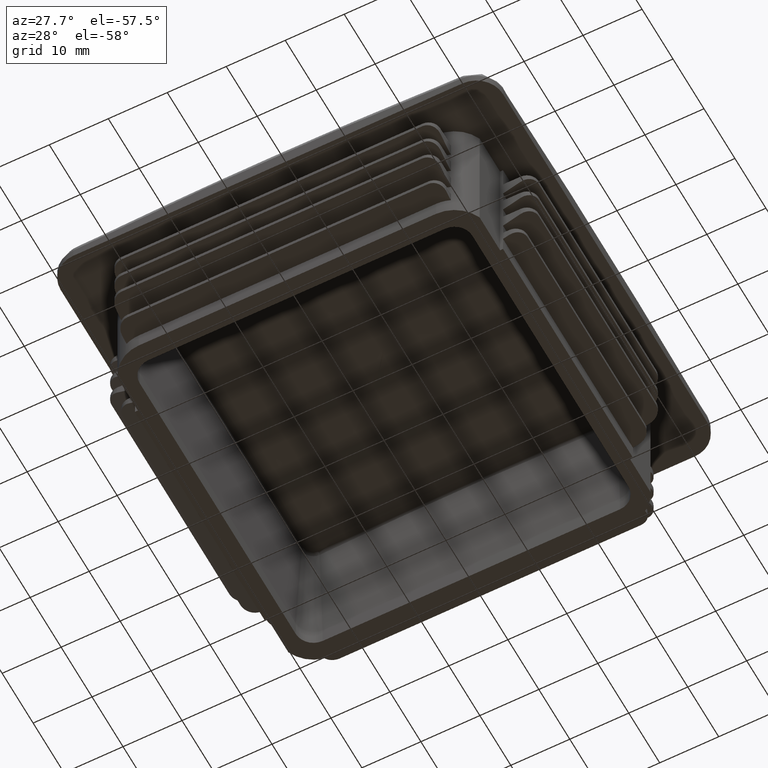
[diagram: clean part render]
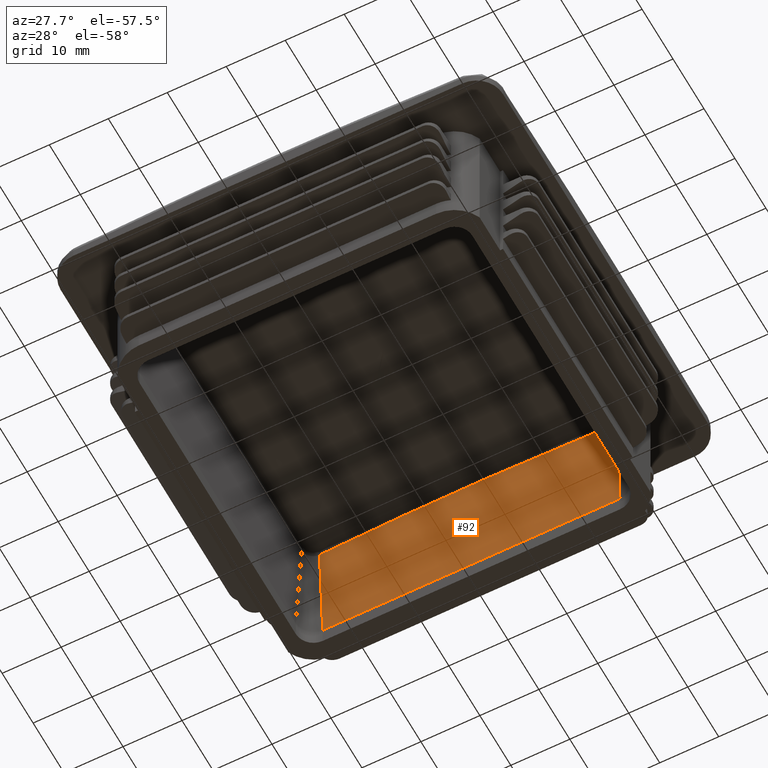
[diagram: same view with one face highlighted and labeled with its STEP entity id]
A machine part, auxiliary view. The second image highlights one B-rep face of the part: STEP entity #92.
In plain terms, the highlighted planar face has unit normal (0, 0.9986, 0.0523).
Its self-contained STEP definition (entity closure, byte-faithful):
#92 = ADVANCED_FACE( '', ( #362 ), #363, .F. );
#362 = FACE_OUTER_BOUND( '', #1797, .T. );
#363 = PLANE( '', #1798 );
#1797 = EDGE_LOOP( '', ( #3628, #3629, #3630, #3631 ) );
#1798 = AXIS2_PLACEMENT_3D( '', #3632, #3633, #3634 );
#3628 = ORIENTED_EDGE( '', *, *, #5612, .F. );
#3629 = ORIENTED_EDGE( '', *, *, #5615, .T. );
#3630 = ORIENTED_EDGE( '', *, *, #5619, .T. );
#3631 = ORIENTED_EDGE( '', *, *, #5620, .F. );
#3632 = CARTESIAN_POINT( '', ( -25.2000000000000, 28.2000000000000, 3.00000000000000 ) );
#3633 = DIRECTION( '', ( 4.92362374229332E-032, 0.998629534754574, 0.0523359562429438 ) );
#3634 = DIRECTION( '', ( 0.000000000000000, -0.0523359562429438, 0.998629534754574 ) );
#5612 = EDGE_CURVE( '', #6338, #6347, #6348, .T. );
#5615 = EDGE_CURVE( '', #6338, #6350, #6352, .T. );
#5619 = EDGE_CURVE( '', #6350, #6357, #6358, .T. );
#5620 = EDGE_CURVE( '', #6347, #6357, #6359, .T. );
#6338 = VERTEX_POINT( '', #7844 );
#6347 = VERTEX_POINT( '', #7915 );
#6348 = LINE( '', #7916, #7917 );
#6350 = VERTEX_POINT( '', #7919 );
#6352 = B_SPLINE_CURVE_WITH_KNOTS( '', 3, ( #7921, #7922, #7923, #7924, #7925, #7926, #7927, #7928, #7929, #7930, #7931, #7932, #7933, #7934, #7935, #7936, #7937, #7938, #7939, #7940 ), .UNSPECIFIED., .F., .F., ( 4, 2, 2, 2, 1, 2, 1, 2, 2, 2, 4 ), ( 0.000000000000000, 0.00630068714888860, 0.0126013742977772, 0.0189020614466658, 0.0252027485955544, 0.0315034357444430, 0.0346537793188873, 0.0362289511061094, 0.0378041228933316, 0.0441048100422202, 0.0504054971911087 ), .UNSPECIFIED. );
#6357 = VERTEX_POINT( '', #7989 );
#6358 = LINE( '', #7990, #7991 );
#6359 = LINE( '', #7992, #7993 );
#7844 = CARTESIAN_POINT( '', ( 25.2000000000000, 27.1730231167708, 22.5958862840344 ) );
#7915 = CARTESIAN_POINT( '', ( 25.2000000000000, 28.2000000000000, 3.00000000000000 ) );
#7916 = CARTESIAN_POINT( '', ( 25.2000000000000, 28.2000000000000, 3.00000000000000 ) );
#7917 = VECTOR( '', #10655, 1000.00000000000 );
#7919 = CARTESIAN_POINT( '', ( -25.2000000000000, 27.1730231167708, 22.5958862840343 ) );
#7921 = CARTESIAN_POINT( '', ( 25.2000000000000, 27.1730231167708, 22.5958862840344 ) );
#7922 = CARTESIAN_POINT( '', ( 23.1012153442577, 27.1671411588183, 22.7081207277159 ) );
#7923 = CARTESIAN_POINT( '', ( 21.0022251290489, 27.1619794779009, 22.8066114668405 ) );
#7924 = CARTESIAN_POINT( '', ( 16.8038299619242, 27.1531093467568, 22.9758636516389 ) );
#7925 = CARTESIAN_POINT( '', ( 14.7044249908805, 27.1494009635539, 23.0466238184228 ) );
#7926 = CARTESIAN_POINT( '', ( 10.5051953894106, 27.1434546768139, 23.1600857284935 ) );
#7927 = CARTESIAN_POINT( '', ( 8.40537068960463, 27.1412170163825, 23.2027828330457 ) );
#7928 = CARTESIAN_POINT( '', ( 4.20529664171809, 27.1382296561824, 23.2597850613591 ) );
#7929 = CARTESIAN_POINT( '', ( 0.00479776985442582, 27.1367308723039, 23.2883835614103 ) );
#7930 = CARTESIAN_POINT( '', ( -4.19655533477200, 27.1382253061633, 23.2598680646692 ) );
#7931 = CARTESIAN_POINT( '', ( -7.34788917390385, 27.1404639397405, 23.2171523913876 ) );
#7932 = CARTESIAN_POINT( '', ( -8.92363579792293, 27.1418625396395, 23.1904655155439 ) );
#7933 = CARTESIAN_POINT( '', ( -10.4995014134541, 27.1436780838659, 23.1558228679986 ) );
#7934 = CARTESIAN_POINT( '', ( -11.5501048589089, 27.1449808412484, 23.1309647763104 ) );
#7935 = CARTESIAN_POINT( '', ( -12.0753926724700, 27.1456783873998, 23.1176548028495 ) );
#7936 = CARTESIAN_POINT( '', ( -14.7016149608143, 27.1493960100162, 23.0467183375538 ) );
#7937 = CARTESIAN_POINT( '', ( -16.8020463223890, 27.1531058301598, 22.9759307523075 ) );
#7938 = CARTESIAN_POINT( '', ( -21.0018298658689, 27.1619783911664, 22.8066322029686 ) );
#7939 = CARTESIAN_POINT( '', ( -23.1011820970852, 27.1671410656413, 22.7081225056391 ) );
#7940 = CARTESIAN_POINT( '', ( -25.2000000000000, 27.1730231167708, 22.5958862840343 ) );
#7989 = CARTESIAN_POINT( '', ( -25.2000000000000, 28.2000000000000, 3.00000000000000 ) );
#7990 = CARTESIAN_POINT( '', ( -25.2000000000000, 28.2000000000000, 3.00000000000000 ) );
#7991 = VECTOR( '', #10664, 1000.00000000000 );
#7992 = CARTESIAN_POINT( '', ( 25.2000000000000, 28.2000000000000, 3.00000000000000 ) );
#7993 = VECTOR( '', #10665, 1000.00000000000 );
#10655 = DIRECTION( '', ( 2.58036186358850E-033, 0.0523359562429438, -0.998629534754574 ) );
#10664 = DIRECTION( '', ( 0.000000000000000, 0.0523359562429438, -0.998629534754574 ) );
#10665 = DIRECTION( '', ( -1.00000000000000, 0.000000000000000, 0.000000000000000 ) );